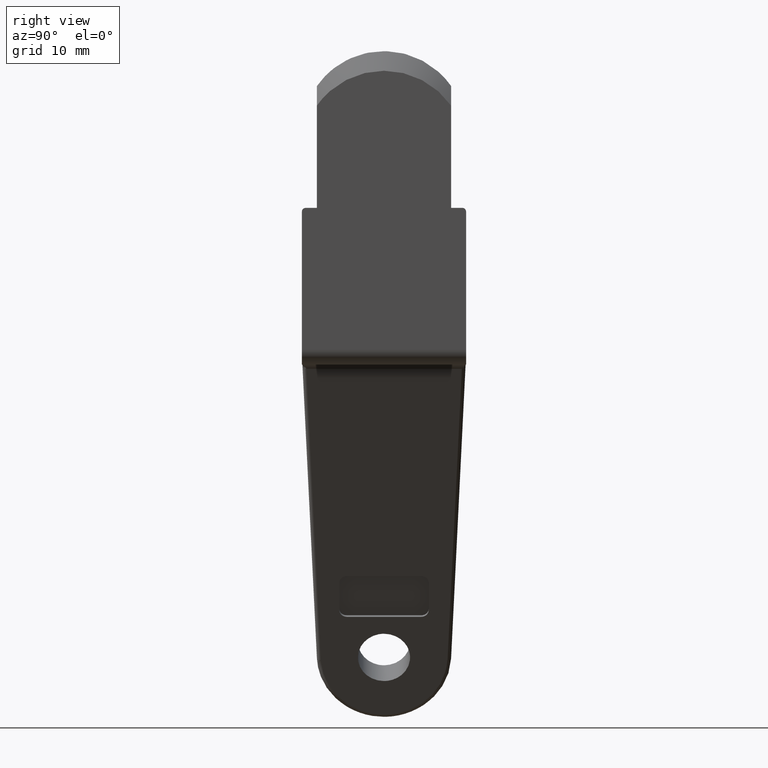
[diagram: clean part render]
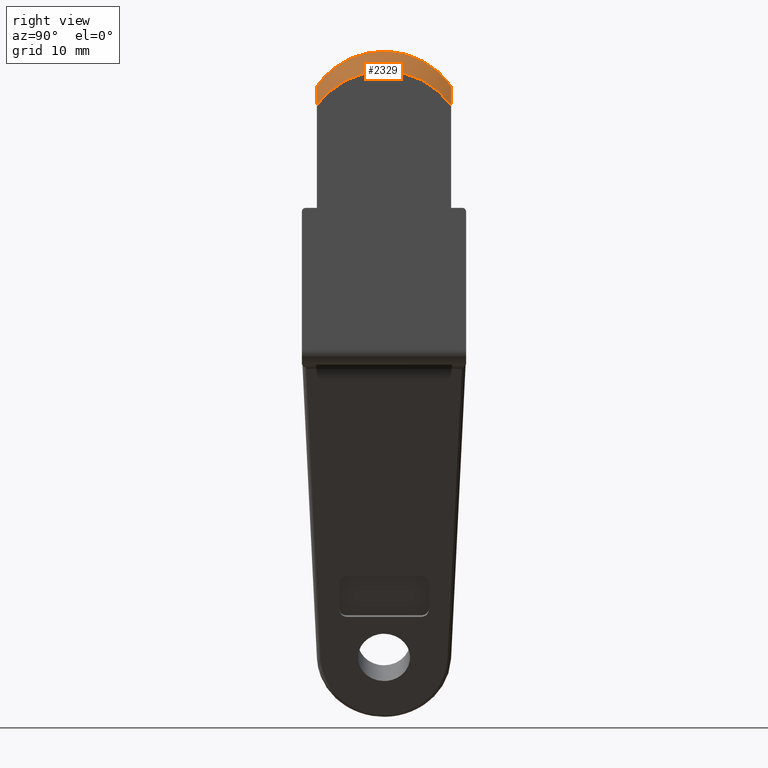
[diagram: same view with one face highlighted and labeled with its STEP entity id]
A machine part, right view. The second image highlights one B-rep face of the part: STEP entity #2329.
In plain terms, the highlighted face is a freeform B-spline surface patch.
Its self-contained STEP definition (entity closure, byte-faithful):
#2214=CARTESIAN_POINT('',(0.055000000004402,9.000893019380914,3.586700551761544));
#2215=CARTESIAN_POINT('',(-2.256375000180583,11.268383190859240,5.150750414908901));
#2216=CARTESIAN_POINT('',(0.055000000004402,-0.379215742239019,17.185566499404935));
#2217=CARTESIAN_POINT('',(-2.256375000180583,-0.474747148572293,22.175420314797634));
#2218=CARTESIAN_POINT('',(0.055000000004402,-9.231937366714003,3.237630620524970));
#2219=CARTESIAN_POINT('',(-2.256375000180583,-11.557631850322830,4.713743360485412));
#2227=(BOUNDED_SURFACE()B_SPLINE_SURFACE(1,2,((#2214,#2216,#2218),(#2215,#2217,#2219)),.UNSPECIFIED.,.F.,.F.,.U.)B_SPLINE_SURFACE_WITH_KNOTS((2,2),(3,3),(0.0,3.595861238096125),(0.0,29.421552746928509),.UNSPECIFIED.)GEOMETRIC_REPRESENTATION_ITEM()RATIONAL_B_SPLINE_SURFACE(((1.0,0.551936985312058,1.0),(1.0,0.551936985312058,1.0)))REPRESENTATION_ITEM('')SURFACE());
#2228=CARTESIAN_POINT('',(-1.418151426887560,9.000000025121729,6.324555284587900));
#2229=VERTEX_POINT('',#2228);
#2230=CARTESIAN_POINT('',(0.0,9.0,3.702697320336655));
#2231=VERTEX_POINT('',#2230);
#2232=CARTESIAN_POINT('',(-1.418151426887560,9.000000025121729,6.324555284587900));
#2233=CARTESIAN_POINT('',(-1.291489584601678,9.0,6.110439896160978));
#2234=CARTESIAN_POINT('',(-1.166475477758860,8.999999999999998,5.895251888107450));
#2235=CARTESIAN_POINT('',(-0.920237321511219,9.0,5.462408673755043));
#2236=CARTESIAN_POINT('',(-0.799094194356084,8.999999999999998,5.244890884922150));
#2237=CARTESIAN_POINT('',(-0.443034771754013,9.000000000000004,4.589613871422985));
#2238=CARTESIAN_POINT('',(-0.215213089639945,8.999999999999998,4.148782564435035));
#2239=CARTESIAN_POINT('',(-5.249350E-017,9.0,3.702697320336656));
#2240=B_SPLINE_CURVE_WITH_KNOTS('',3,(#2232,#2233,#2234,#2235,#2236,#2237,#2238,#2239),.UNSPECIFIED.,.F.,.U.,(4,2,2,4),(0.0,0.250000000000000,0.500000000000000,1.0),.UNSPECIFIED.);
#2241=EDGE_CURVE('',#2229,#2231,#2240,.T.);
#2242=ORIENTED_EDGE('',*,*,#2241,.F.);
#2243=CARTESIAN_POINT('',(-1.418151426887536,-9.000000025121768,6.324555284587849));
#2244=VERTEX_POINT('',#2243);
#2245=CARTESIAN_POINT('',(-1.418151426887564,9.000000025121734,6.324555284587904));
#2246=CARTESIAN_POINT('',(-1.480598461177536,8.746871421586382,6.684763605278651));
#2247=CARTESIAN_POINT('',(-1.539317270266200,8.474456447456559,7.026615913752118));
#2248=CARTESIAN_POINT('',(-1.649845724711264,7.892289327258972,7.674732077021758));
#2249=CARTESIAN_POINT('',(-1.701653854921995,7.582534299992703,7.980993352375727));
#2250=CARTESIAN_POINT('',(-1.774349103265971,7.089616910769649,8.413388282008432));
#2251=CARTESIAN_POINT('',(-1.797742323095806,6.920584815956035,8.553008861103518));
#2252=CARTESIAN_POINT('',(-1.842850697796360,6.572867443152475,8.823030564817437));
#2253=CARTESIAN_POINT('',(-1.864622030611075,6.393633795536267,8.953771625961160));
#2254=CARTESIAN_POINT('',(-1.926634516893286,5.847930830445709,9.327165848610466));
#2255=CARTESIAN_POINT('',(-1.963806405820716,5.472066582687326,9.552358722306488));
#2256=CARTESIAN_POINT('',(-2.030248749145171,4.696830292435505,9.956447913239357));
#2257=CARTESIAN_POINT('',(-2.059518257896693,4.297457580285197,10.135343030188860));
#2258=CARTESIAN_POINT('',(-2.097531719333437,3.680463705061476,10.368342052334709));
#2259=CARTESIAN_POINT('',(-2.109218150302987,3.471802117130189,10.440102414824930));
#2260=CARTESIAN_POINT('',(-2.125247655127602,3.154200636722057,10.538657667674659));
#2261=CARTESIAN_POINT('',(-2.130341638875293,3.047515707969351,10.570000582451909));
#2262=CARTESIAN_POINT('',(-2.139959576243434,2.834089110729353,10.629214609546599));
#2263=CARTESIAN_POINT('',(-2.144493161994906,2.727165168651589,10.657144913926970));
#2264=CARTESIAN_POINT('',(-2.165805145113406,2.191504767277273,10.788511854362991));
#2265=CARTESIAN_POINT('',(-2.191260276364967,1.327810305354562,10.945856829987260));
#2266=CARTESIAN_POINT('',(-2.199938208876626,0.451107298946507,10.999617404608930));
#2267=CARTESIAN_POINT('',(-2.200014632132719,-0.100991961312371,11.000090598555730));
#2268=CARTESIAN_POINT('',(-2.199761500485701,-0.211620521965480,10.998523210510079));
#2269=CARTESIAN_POINT('',(-2.198711445456404,-0.433300389255542,10.992021962774499));
#2270=CARTESIAN_POINT('',(-2.197912306004027,-0.544521267892157,10.987074384910580));
#2271=CARTESIAN_POINT('',(-2.194709546481199,-0.876740348038724,10.967249161257421));
#2272=CARTESIAN_POINT('',(-2.191502742226309,-1.096751831329273,10.947401722699810));
#2273=CARTESIAN_POINT('',(-2.178733460086102,-1.752483717120835,10.868425693356251));
#2274=CARTESIAN_POINT('',(-2.166034802035300,-2.183916639356368,10.789931251105839));
#2275=CARTESIAN_POINT('',(-2.132296452106083,-3.035492496885675,10.581960763138310));
#2276=CARTESIAN_POINT('',(-2.111257668857377,-3.455636081002632,10.452487577554830));
#2277=CARTESIAN_POINT('',(-2.079503127114202,-3.973546345055204,10.257834775131760));
#2278=CARTESIAN_POINT('',(-2.072866124426139,-4.076939539692359,10.217183353858941));
#2279=CARTESIAN_POINT('',(-2.059109468242605,-4.281880155594933,10.133004195686571));
#2280=CARTESIAN_POINT('',(-2.051989545321579,-4.383452914934301,10.089474663017830));
#2281=CARTESIAN_POINT('',(-2.029910677754766,-4.685515394966457,9.954626020902630));
#2282=CARTESIAN_POINT('',(-2.014233366148888,-4.883351778734532,9.859050804180276));
#2283=CARTESIAN_POINT('',(-1.964345338365559,-5.466446661421048,9.555626107950671));
#2284=CARTESIAN_POINT('',(-1.927289826370733,-5.841327055466198,9.331135341711928));
#2285=CARTESIAN_POINT('',(-1.865876526788239,-6.382996974376955,8.961313896893770));
#2286=CARTESIAN_POINT('',(-1.844430948566029,-6.560102729687569,8.832511316575177));
#2287=CARTESIAN_POINT('',(-1.810757557415461,-6.820517089219994,8.630909432442723));
#2288=CARTESIAN_POINT('',(-1.799282065717868,-6.906447241613338,8.562308196584441));
#2289=CARTESIAN_POINT('',(-1.775819403578488,-7.076539627172941,8.422275349306535));
#2290=CARTESIAN_POINT('',(-1.763815140859633,-7.160816603537006,8.350742118039044));
#2291=CARTESIAN_POINT('',(-1.702708387554050,-7.576226921973325,7.987227256719766));
#2292=CARTESIAN_POINT('',(-1.650534429911684,-7.888469924871163,7.678783365725726));
#2293=CARTESIAN_POINT('',(-1.539480557407003,-8.473786833745990,7.027560631511910));
#2294=CARTESIAN_POINT('',(-1.480601398678467,-8.746859514447468,6.684780549434519));
#2295=CARTESIAN_POINT('',(-1.418151426887539,-9.000000025121771,6.324555284587851));
#2296=B_SPLINE_CURVE_WITH_KNOTS('',3,(#2245,#2246,#2247,#2248,#2249,#2250,#2251,#2252,#2253,#2254,#2255,#2256,#2257,#2258,#2259,#2260,#2261,#2262,#2263,#2264,#2265,#2266,#2267,#2268,#2269,#2270,#2271,#2272,#2273,#2274,#2275,#2276,#2277,#2278,#2279,#2280,#2281,#2282,#2283,#2284,#2285,#2286,#2287,#2288,#2289,#2290,#2291,#2292,#2293,#2294,#2295),.UNSPECIFIED.,.F.,.U.,(4,2,2,2,2,2,2,2,2,2,1,2,2,2,2,2,2,2,2,2,2,2,2,2,2,4),(0.0,0.062500000000000,0.125000000000000,0.156250000000000,0.187500000000001,0.250000000000001,0.312500000000001,0.343750000000001,0.359375000000001,0.375000000000001,0.437500000000001,0.500000000000001,0.515625000000001,0.531250000000001,0.562500000000001,0.625000000000002,0.687500000000002,0.703125000000002,0.718750000000002,0.750000000000002,0.812500000000002,0.843750000000002,0.859375000000001,0.875000000000001,0.937500000000001,1.0),.UNSPECIFIED.);
#2297=EDGE_CURVE('',#2229,#2244,#2296,.T.);
#2298=ORIENTED_EDGE('',*,*,#2297,.T.);
#2299=CARTESIAN_POINT('',(0.0,-9.0,3.702697320336695));
#2300=VERTEX_POINT('',#2299);
#2301=CARTESIAN_POINT('',(-1.853369E-016,-9.0,3.702697320336694));
#2302=CARTESIAN_POINT('',(-0.215325054451050,-9.000000000000002,4.149014640700393));
#2303=CARTESIAN_POINT('',(-0.443137797582287,-9.0,4.589801752793559));
#2304=CARTESIAN_POINT('',(-0.799000315164821,-9.0,5.244718974941421));
#2305=CARTESIAN_POINT('',(-0.919994119473647,-8.999999999999996,5.461973841341173));
#2306=CARTESIAN_POINT('',(-1.166127542760521,-9.0,5.894647588382310));
#2307=CARTESIAN_POINT('',(-1.291323632929442,-8.999999999999996,6.110159363285179));
#2308=CARTESIAN_POINT('',(-1.418151426887536,-9.000000025121768,6.324555284587849));
#2309=B_SPLINE_CURVE_WITH_KNOTS('',3,(#2301,#2302,#2303,#2304,#2305,#2306,#2307,#2308),.UNSPECIFIED.,.F.,.U.,(4,2,2,4),(0.0,0.500000000000000,0.750000000000000,1.0),.UNSPECIFIED.);
#2310=EDGE_CURVE('',#2300,#2244,#2309,.T.);
#2311=ORIENTED_EDGE('',*,*,#2310,.F.);
#2312=CARTESIAN_POINT('',(0.0,9.0,3.702697320336655));
#2313=CARTESIAN_POINT('',(0.0,5.714432386255173,8.378142000000109));
#2314=CARTESIAN_POINT('',(0.0,-1.421085E-014,8.378142000000109));
#2315=CARTESIAN_POINT('',(0.0,-5.714432386255171,8.378142000000109));
#2316=CARTESIAN_POINT('',(0.0,-9.0,3.702697320336695));
#2324=(BOUNDED_CURVE()B_SPLINE_CURVE(2,(#2312,#2313,#2314,#2315,#2316),.UNSPECIFIED.,.F.,.U.)B_SPLINE_CURVE_WITH_KNOTS((3,2,3),(0.0,0.500000000000000,1.0),.UNSPECIFIED.)CURVE()GEOMETRIC_REPRESENTATION_ITEM()RATIONAL_B_SPLINE_CURVE((1.0,0.887400578818849,1.0,0.887400578818849,1.0))REPRESENTATION_ITEM(''));
#2325=EDGE_CURVE('',#2231,#2300,#2324,.T.);
#2326=ORIENTED_EDGE('',*,*,#2325,.F.);
#2327=EDGE_LOOP('',(#2242,#2298,#2311,#2326));
#2328=FACE_OUTER_BOUND('',#2327,.T.);
#2329=ADVANCED_FACE('',(#2328),#2227,.T.);